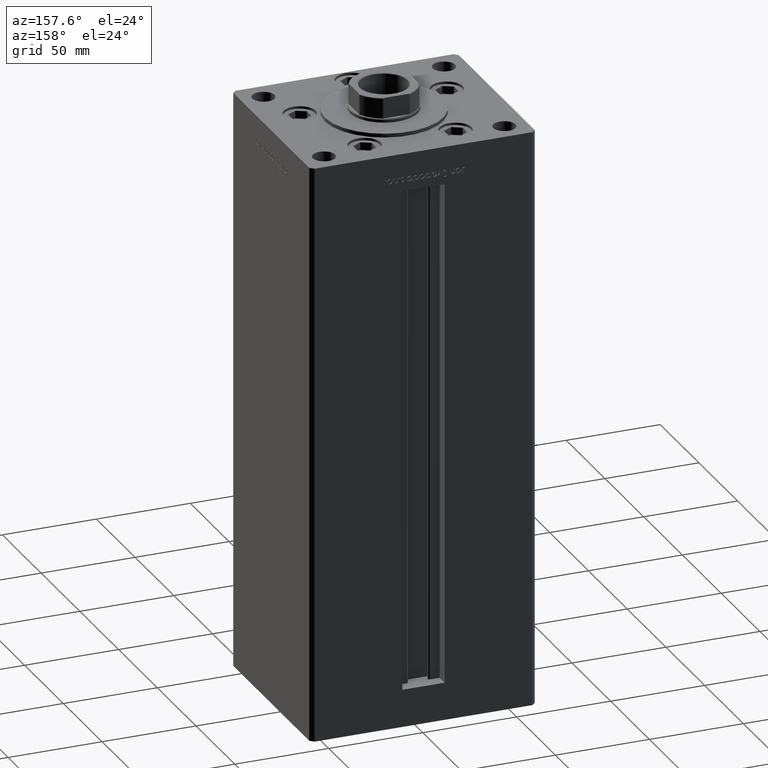
[diagram: clean part render]
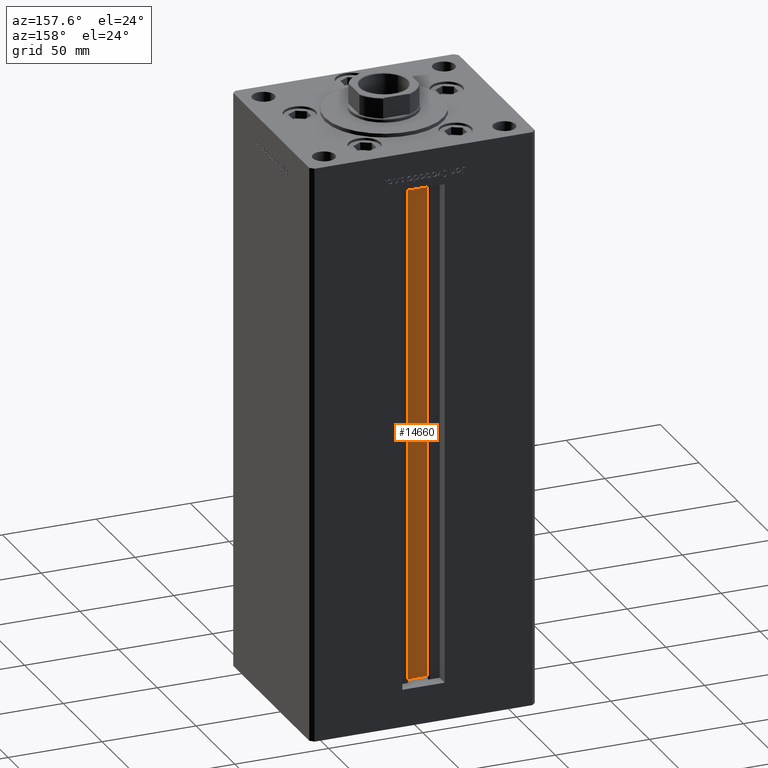
[diagram: same view with one face highlighted and labeled with its STEP entity id]
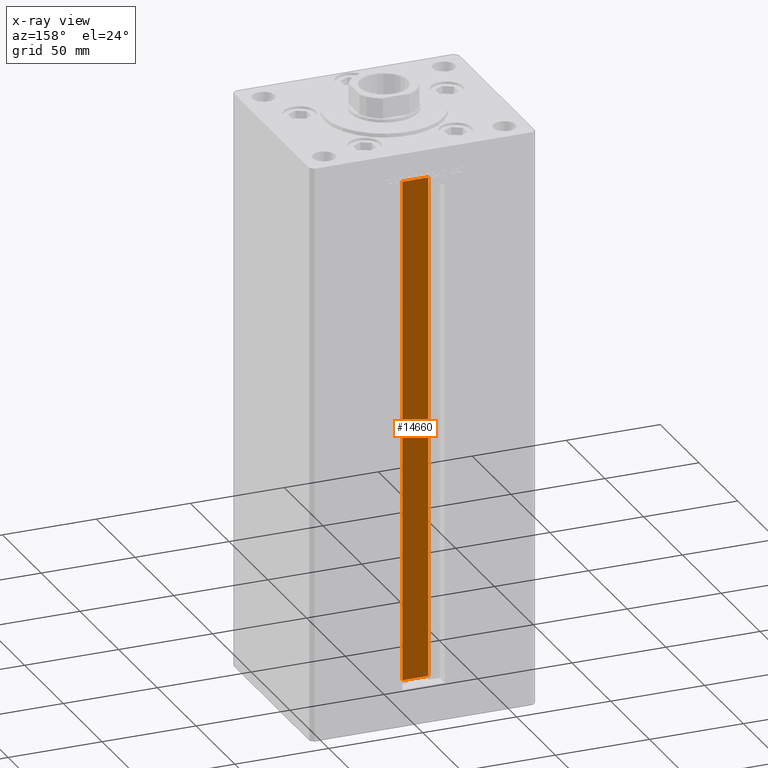
[diagram: x-ray of the same camera — body ghosted, the highlighted face saturated]
A machine part, auxiliary view. The second image highlights one B-rep face of the part: STEP entity #14660.
The next image is the same camera in x-ray: the body ghosted, the highlighted face saturated — about 0% of this face is hidden behind the body in this view.
In plain terms, the highlighted planar face has unit normal (0, -1, 0).
Its self-contained STEP definition (entity closure, byte-faithful):
#357 = DIRECTION ( 'NONE',  ( 1.000000000000000000, -0.000000000000000000, -0.000000000000000000 ) ) ;
#2046 = PLANE ( 'NONE',  #25351 ) ;
#2371 = ORIENTED_EDGE ( 'NONE', *, *, #6458, .F. ) ;
#2847 = CARTESIAN_POINT ( 'NONE',  ( -6.876153656360466826, 40.49999999999987210, 0.000000000000000000 ) ) ;
#4842 = CARTESIAN_POINT ( 'NONE',  ( 6.876153656360466826, 40.49999999999987210, 0.000000000000000000 ) ) ;
#5113 = CARTESIAN_POINT ( 'NONE',  ( -6.876153656360466826, 40.49999999999987210, 268.5000000000000000 ) ) ;
#6002 = DIRECTION ( 'NONE',  ( 0.000000000000000000, 0.000000000000000000, -1.000000000000000000 ) ) ;
#6458 = EDGE_CURVE ( 'NONE', #12987, #6784, #27850, .T. ) ;
#6784 = VERTEX_POINT ( 'NONE', #19098 ) ;
#7406 = EDGE_CURVE ( 'NONE', #51710, #29047, #10747, .T. ) ;
#9316 = EDGE_CURVE ( 'NONE', #6784, #29047, #31521, .T. ) ;
#9946 = DIRECTION ( 'NONE',  ( 0.000000000000000000, -1.000000000000000000, -0.000000000000000000 ) ) ;
#10747 = LINE ( 'NONE', #2847, #14156 ) ;
#12987 = VERTEX_POINT ( 'NONE', #51605 ) ;
#14156 = VECTOR ( 'NONE', #26830, 1000.000000000000000 ) ;
#14660 = ADVANCED_FACE ( 'NONE', ( #37370 ), #2046, .F. ) ;
#16426 = ORIENTED_EDGE ( 'NONE', *, *, #7406, .T. ) ;
#17573 = CARTESIAN_POINT ( 'NONE',  ( -6.876153656360466826, 40.49999999999987210, 0.000000000000000000 ) ) ;
#19098 = CARTESIAN_POINT ( 'NONE',  ( 6.876153656360466826, 40.49999999999987210, 268.5000000000000000 ) ) ;
#20471 = ORIENTED_EDGE ( 'NONE', *, *, #9316, .F. ) ;
#25351 = AXIS2_PLACEMENT_3D ( 'NONE', #33672, #9946, #6002 ) ;
#26830 = DIRECTION ( 'NONE',  ( -0.000000000000000000, -0.000000000000000000, 1.000000000000000000 ) ) ;
#27850 = LINE ( 'NONE', #42897, #35140 ) ;
#28277 = LINE ( 'NONE', #4842, #37597 ) ;
#29047 = VERTEX_POINT ( 'NONE', #5113 ) ;
#31290 = DIRECTION ( 'NONE',  ( -0.000000000000000000, -0.000000000000000000, 1.000000000000000000 ) ) ;
#31521 = LINE ( 'NONE', #36516, #49588 ) ;
#33398 = EDGE_LOOP ( 'NONE', ( #2371, #42018, #16426, #20471 ) ) ;
#33672 = CARTESIAN_POINT ( 'NONE',  ( 6.876153656360466826, 40.49999999999987210, 0.000000000000000000 ) ) ;
#35140 = VECTOR ( 'NONE', #31290, 1000.000000000000000 ) ;
#36516 = CARTESIAN_POINT ( 'NONE',  ( 0.000000000000000000, 40.49999999999987210, 268.5000000000000000 ) ) ;
#36693 = EDGE_CURVE ( 'NONE', #51710, #12987, #28277, .T. ) ;
#37370 = FACE_OUTER_BOUND ( 'NONE', #33398, .T. ) ;
#37597 = VECTOR ( 'NONE', #357, 1000.000000000000000 ) ;
#42018 = ORIENTED_EDGE ( 'NONE', *, *, #36693, .F. ) ;
#42897 = CARTESIAN_POINT ( 'NONE',  ( 6.876153656360466826, 40.49999999999987210, 0.000000000000000000 ) ) ;
#44693 = DIRECTION ( 'NONE',  ( -1.000000000000000000, 0.000000000000000000, 0.000000000000000000 ) ) ;
#49588 = VECTOR ( 'NONE', #44693, 1000.000000000000000 ) ;
#51605 = CARTESIAN_POINT ( 'NONE',  ( 6.876153656360466826, 40.49999999999987210, 0.000000000000000000 ) ) ;
#51710 = VERTEX_POINT ( 'NONE', #17573 ) ;